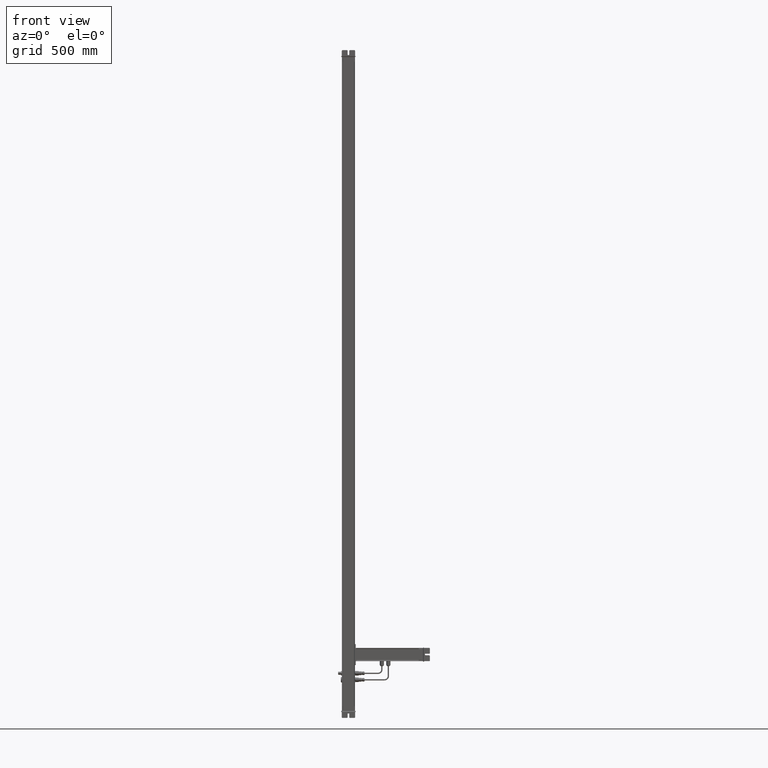
[diagram: clean part render]
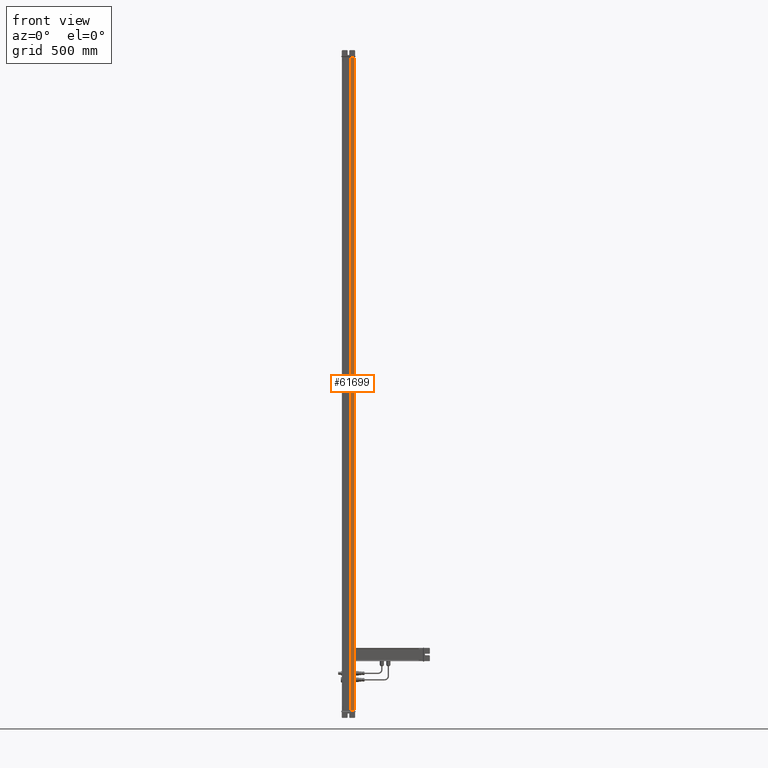
[diagram: same view with one face highlighted and labeled with its STEP entity id]
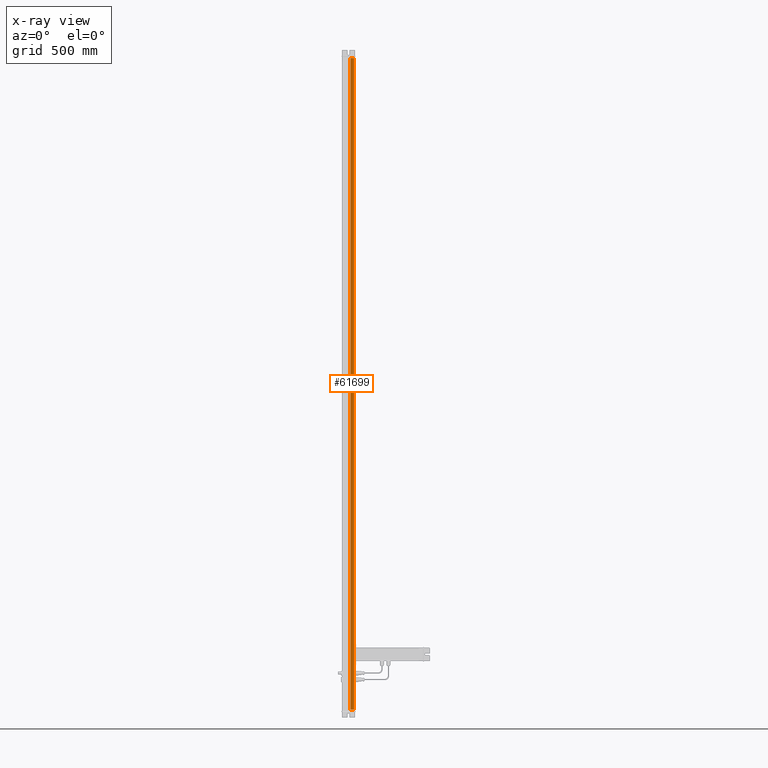
[diagram: x-ray of the same camera — body ghosted, the highlighted face saturated]
A machine part, front view. The second image highlights one B-rep face of the part: STEP entity #61699.
The next image is the same camera in x-ray: the body ghosted, the highlighted face saturated — about 0% of this face is hidden behind the body in this view.
In plain terms, the highlighted planar face has unit normal (0, -1, 0).
Its self-contained STEP definition (entity closure, byte-faithful):
#61519=CARTESIAN_POINT('Axis2P3D Location',(647.67209889,120.060780121,0.)) ;
#61652=CARTESIAN_POINT('Vertex',(647.67209889,120.060780121,2612.)) ;
#61659=CARTESIAN_POINT('Vertex',(647.67209889,120.060780121,0.)) ;
#61662=CARTESIAN_POINT('Line Origine',(647.67209889,120.060780121,1306.)) ;
#61674=CARTESIAN_POINT('Line Origine',(654.908380451,120.060780121,0.)) ;
#61678=CARTESIAN_POINT('Vertex',(662.144662012,120.060780121,0.)) ;
#61681=CARTESIAN_POINT('Line Origine',(662.144662012,120.060780121,1306.)) ;
#61685=CARTESIAN_POINT('Vertex',(662.144662012,120.060780121,2612.)) ;
#61688=CARTESIAN_POINT('Line Origine',(654.908380451,120.060780121,2612.)) ;
#61520=DIRECTION('Axis2P3D Direction',(0.,-1.,0.)) ;
#61521=DIRECTION('Axis2P3D XDirection',(1.,0.,0.)) ;
#61663=DIRECTION('Vector Direction',(0.,0.,1.)) ;
#61675=DIRECTION('Vector Direction',(1.,0.,0.)) ;
#61682=DIRECTION('Vector Direction',(0.,0.,1.)) ;
#61689=DIRECTION('Vector Direction',(1.,0.,0.)) ;
#61522=AXIS2_PLACEMENT_3D('Plane Axis2P3D',#61519,#61520,#61521) ;
#61694=ORIENTED_EDGE('',*,*,#61666,.F.) ;
#61695=ORIENTED_EDGE('',*,*,#61680,.T.) ;
#61696=ORIENTED_EDGE('',*,*,#61687,.T.) ;
#61697=ORIENTED_EDGE('',*,*,#61692,.F.) ;
#61664=VECTOR('Line Direction',#61663,1.) ;
#61676=VECTOR('Line Direction',#61675,1.) ;
#61683=VECTOR('Line Direction',#61682,1.) ;
#61690=VECTOR('Line Direction',#61689,1.) ;
#61699=ADVANCED_FACE('Body.2',(#61698),#61523,.T.) ;
#61666=EDGE_CURVE('',#61660,#61653,#61665,.T.) ;
#61680=EDGE_CURVE('',#61660,#61679,#61677,.T.) ;
#61687=EDGE_CURVE('',#61679,#61686,#61684,.T.) ;
#61692=EDGE_CURVE('',#61653,#61686,#61691,.T.) ;
#61693=EDGE_LOOP('',(#61694,#61695,#61696,#61697)) ;
#61698=FACE_OUTER_BOUND('',#61693,.T.) ;
#61665=LINE('Line',#61662,#61664) ;
#61677=LINE('Line',#61674,#61676) ;
#61684=LINE('Line',#61681,#61683) ;
#61691=LINE('Line',#61688,#61690) ;
#61523=PLANE('Plane',#61522) ;
#61653=VERTEX_POINT('',#61652) ;
#61660=VERTEX_POINT('',#61659) ;
#61679=VERTEX_POINT('',#61678) ;
#61686=VERTEX_POINT('',#61685) ;